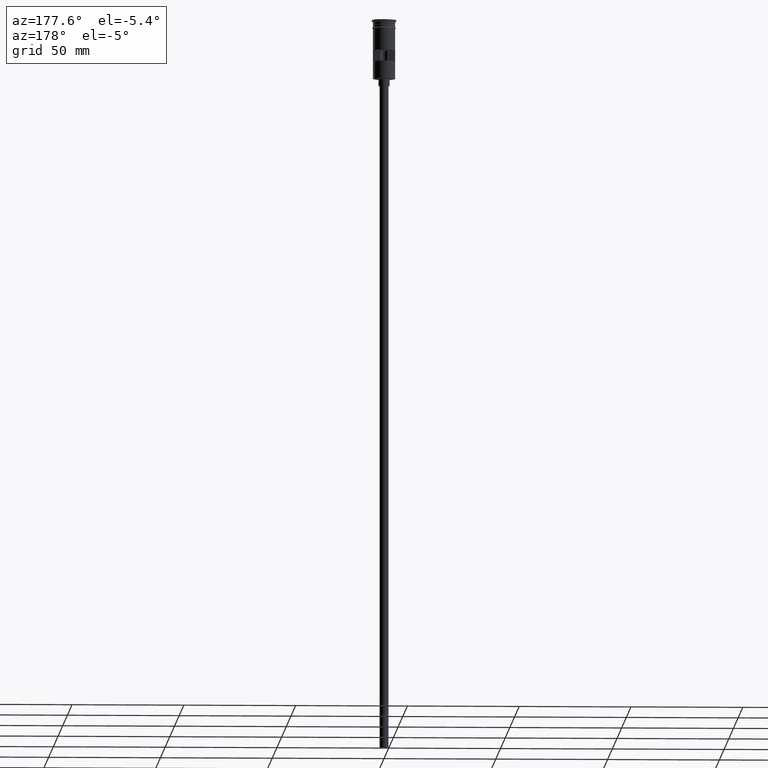
[diagram: clean part render]
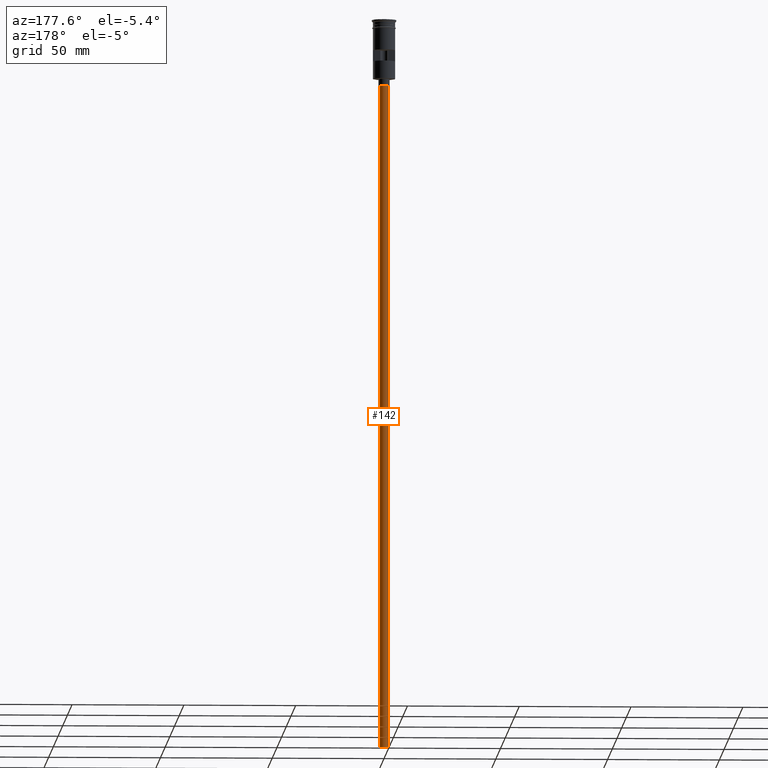
[diagram: same view with one face highlighted and labeled with its STEP entity id]
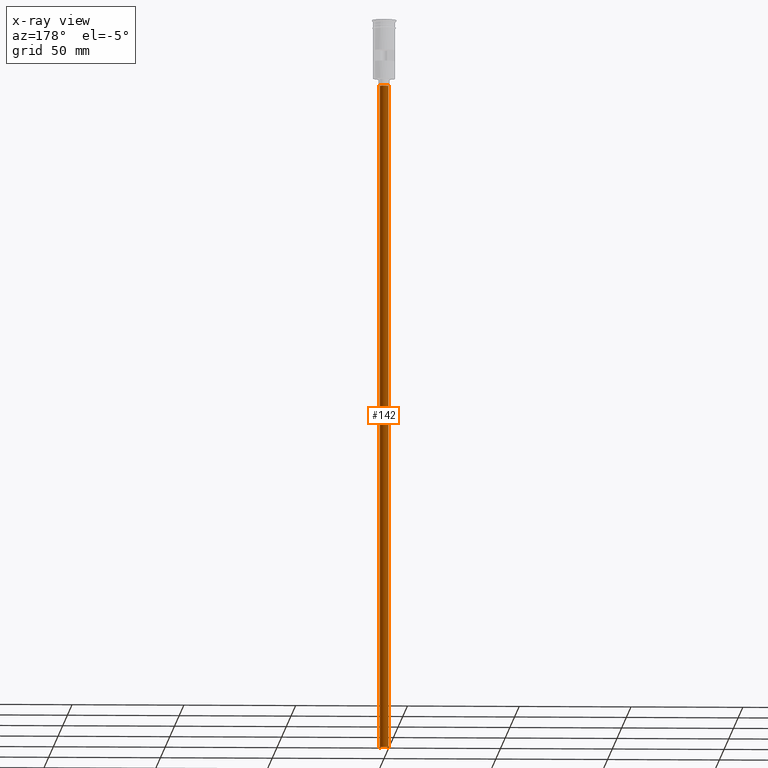
[diagram: x-ray of the same camera — body ghosted, the highlighted face saturated]
A machine part, auxiliary view. The second image highlights one B-rep face of the part: STEP entity #142.
The next image is the same camera in x-ray: the body ghosted, the highlighted face saturated — about 0% of this face is hidden behind the body in this view.
In plain terms, the highlighted cylindrical surface (edge-blend (fillet) strip) has radius 2 mm, axis along (-0, -0, 1).
Its self-contained STEP definition (entity closure, byte-faithful):
#110 = CYLINDRICAL_SURFACE ( 'NONE', #794, 2.000000000000000000 ) ;
#138 = AXIS2_PLACEMENT_3D ( 'NONE', #1458, #928, #351 ) ;
#142 = ADVANCED_FACE ( 'NONE', ( #1590 ), #110, .T. ) ;
#255 = EDGE_LOOP ( 'NONE', ( #1474, #913, #783, #1035 ) ) ;
#335 = DIRECTION ( 'NONE',  ( -1.000000000000000000, 0.000000000000000000, 0.000000000000000000 ) ) ;
#339 = CARTESIAN_POINT ( 'NONE',  ( -2.000000000000000000, 2.449293598294706414E-16, -29.50000000000000000 ) ) ;
#351 = DIRECTION ( 'NONE',  ( -1.000000000000000000, 0.000000000000000000, 0.000000000000000000 ) ) ;
#378 = CARTESIAN_POINT ( 'NONE',  ( -2.000000000000000000, 2.449293598294706414E-16, -326.5000000000000000 ) ) ;
#386 = LINE ( 'NONE', #378, #1361 ) ;
#464 = EDGE_CURVE ( 'NONE', #994, #1013, #386, .T. ) ;
#479 = DIRECTION ( 'NONE',  ( -0.000000000000000000, -0.000000000000000000, 1.000000000000000000 ) ) ;
#555 = VERTEX_POINT ( 'NONE', #661 ) ;
#609 = CARTESIAN_POINT ( 'NONE',  ( 0.000000000000000000, 0.000000000000000000, -326.5000000000000000 ) ) ;
#661 = CARTESIAN_POINT ( 'NONE',  ( 2.000000000000000000, 0.000000000000000000, -29.50000000000000000 ) ) ;
#701 = DIRECTION ( 'NONE',  ( 0.000000000000000000, 0.000000000000000000, -1.000000000000000000 ) ) ;
#783 = ORIENTED_EDGE ( 'NONE', *, *, #1454, .T. ) ;
#794 = AXIS2_PLACEMENT_3D ( 'NONE', #609, #479, #969 ) ;
#800 = CIRCLE ( 'NONE', #1106, 2.000000000000000000 ) ;
#821 = CIRCLE ( 'NONE', #138, 2.000000000000000000 ) ;
#852 = CARTESIAN_POINT ( 'NONE',  ( 2.000000000000000000, 0.000000000000000000, -326.5000000000000000 ) ) ;
#913 = ORIENTED_EDGE ( 'NONE', *, *, #464, .T. ) ;
#925 = VECTOR ( 'NONE', #1039, 1000.000000000000000 ) ;
#928 = DIRECTION ( 'NONE',  ( 0.000000000000000000, 0.000000000000000000, -1.000000000000000000 ) ) ;
#969 = DIRECTION ( 'NONE',  ( 1.000000000000000000, 0.000000000000000000, 0.000000000000000000 ) ) ;
#994 = VERTEX_POINT ( 'NONE', #1433 ) ;
#1013 = VERTEX_POINT ( 'NONE', #339 ) ;
#1035 = ORIENTED_EDGE ( 'NONE', *, *, #1348, .F. ) ;
#1039 = DIRECTION ( 'NONE',  ( -0.000000000000000000, -0.000000000000000000, 1.000000000000000000 ) ) ;
#1065 = LINE ( 'NONE', #1407, #925 ) ;
#1106 = AXIS2_PLACEMENT_3D ( 'NONE', #1548, #701, #335 ) ;
#1267 = DIRECTION ( 'NONE',  ( -0.000000000000000000, -0.000000000000000000, 1.000000000000000000 ) ) ;
#1340 = EDGE_CURVE ( 'NONE', #994, #1489, #800, .T. ) ;
#1348 = EDGE_CURVE ( 'NONE', #1489, #555, #1065, .T. ) ;
#1361 = VECTOR ( 'NONE', #1267, 1000.000000000000000 ) ;
#1407 = CARTESIAN_POINT ( 'NONE',  ( 2.000000000000000000, 0.000000000000000000, -326.5000000000000000 ) ) ;
#1433 = CARTESIAN_POINT ( 'NONE',  ( -2.000000000000000000, 2.449293598294706414E-16, -326.5000000000000000 ) ) ;
#1454 = EDGE_CURVE ( 'NONE', #1013, #555, #821, .T. ) ;
#1458 = CARTESIAN_POINT ( 'NONE',  ( 0.000000000000000000, 0.000000000000000000, -29.50000000000000000 ) ) ;
#1474 = ORIENTED_EDGE ( 'NONE', *, *, #1340, .F. ) ;
#1489 = VERTEX_POINT ( 'NONE', #852 ) ;
#1548 = CARTESIAN_POINT ( 'NONE',  ( 0.000000000000000000, 0.000000000000000000, -326.5000000000000000 ) ) ;
#1590 = FACE_OUTER_BOUND ( 'NONE', #255, .T. ) ;